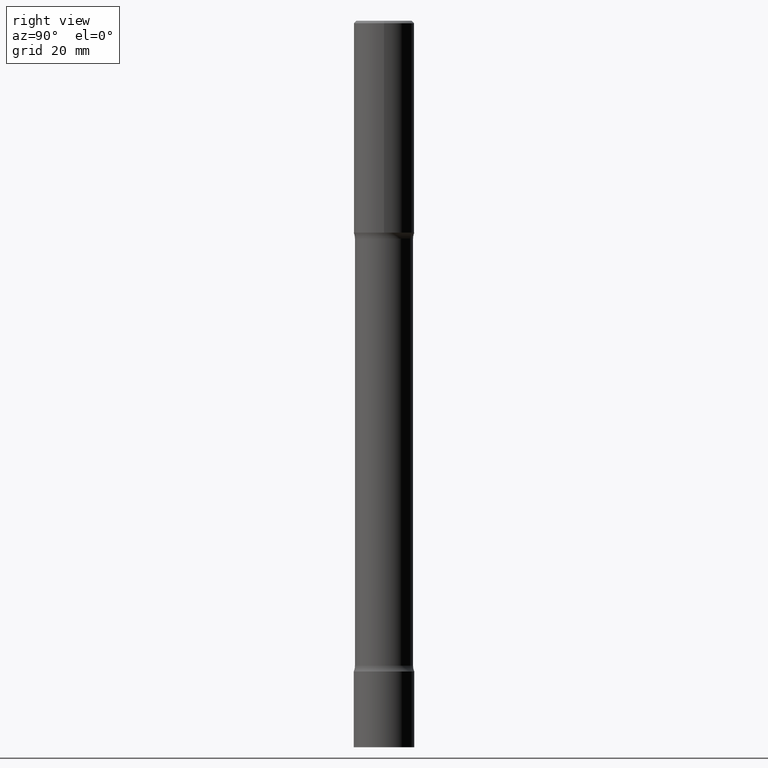
[diagram: clean part render]
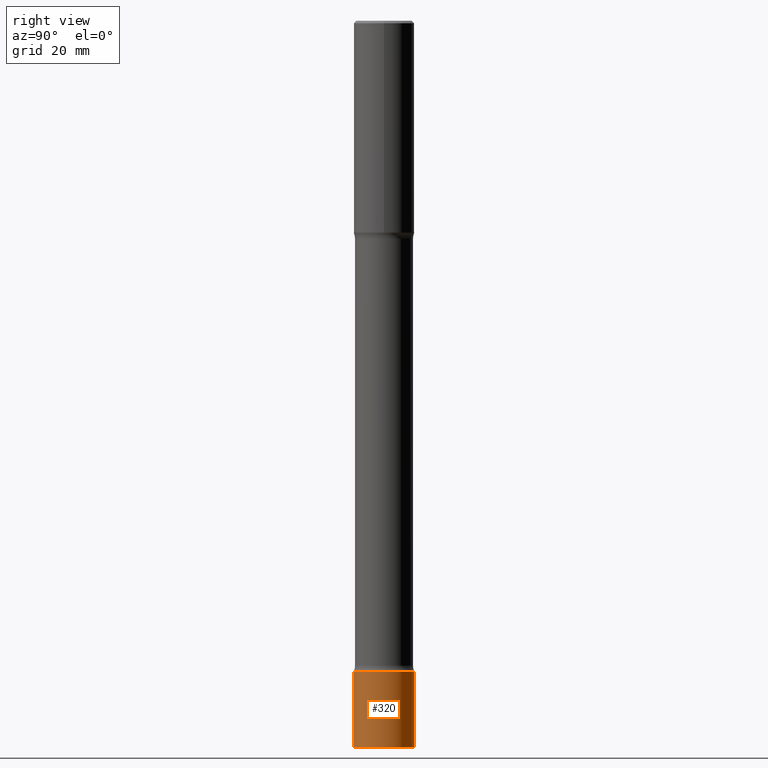
[diagram: same view with one face highlighted and labeled with its STEP entity id]
A machine part, right view. The second image highlights one B-rep face of the part: STEP entity #320.
In plain terms, the highlighted cylindrical surface (edge-blend (fillet) strip) has radius 6.35 mm, axis along (-0, 0, 1).
Its self-contained STEP definition (entity closure, byte-faithful):
#2 = EDGE_CURVE ( 'NONE', #488, #205, #156, .T. ) ;
#31 = DIRECTION ( 'NONE',  ( -2.445167468974182699E-29, 3.491912870880280667E-15, 1.000000000000000000 ) ) ;
#32 = DIRECTION ( 'NONE',  ( -2.445167468974182699E-29, 3.491912870880280272E-15, 1.000000000000000000 ) ) ;
#34 = VECTOR ( 'NONE', #32, 39.37007874015748143 ) ;
#50 = CARTESIAN_POINT ( 'NONE',  ( 1.776356839400388910E-15, 0.2499999999999789613, -6.000000000000001776 ) ) ;
#55 = CARTESIAN_POINT ( 'NONE',  ( 1.776356839400396798E-15, 0.2499999999999811262, -5.375000000000002665 ) ) ;
#59 = EDGE_LOOP ( 'NONE', ( #477, #236, #95, #502 ) ) ;
#65 = CARTESIAN_POINT ( 'NONE',  ( 0.000000000000000000, 0.000000000000000000, 0.000000000000000000 ) ) ;
#95 = ORIENTED_EDGE ( 'NONE', *, *, #2, .F. ) ;
#102 = EDGE_CURVE ( 'NONE', #408, #173, #425, .T. ) ;
#118 = LINE ( 'NONE', #167, #184 ) ;
#135 = CARTESIAN_POINT ( 'NONE',  ( -1.745740669421433952E-15, -0.2500000000000186517, -5.375000000000000888 ) ) ;
#140 = CARTESIAN_POINT ( 'NONE',  ( -1.745740669421419161E-15, -0.2500000000000208722, -5.999999999999999112 ) ) ;
#154 = CARTESIAN_POINT ( 'NONE',  ( 1.467100481384509675E-28, -2.095147722528168321E-14, -6.000000000000000888 ) ) ;
#156 = CIRCLE ( 'NONE', #444, 0.2499999999999998612 ) ;
#167 = CARTESIAN_POINT ( 'NONE',  ( -1.745740669421565692E-15, -0.2499999999999998890, 8.729782177200697723E-16 ) ) ;
#173 = VERTEX_POINT ( 'NONE', #50 ) ;
#174 = CARTESIAN_POINT ( 'NONE',  ( 1.776356839400249479E-15, 0.2499999999999998890, -8.729782177200697723E-16 ) ) ;
#178 = FACE_OUTER_BOUND ( 'NONE', #59, .T. ) ;
#184 = VECTOR ( 'NONE', #200, 39.37007874015748143 ) ;
#200 = DIRECTION ( 'NONE',  ( -2.445167468974182699E-29, 3.491912870880280272E-15, 1.000000000000000000 ) ) ;
#205 = VERTEX_POINT ( 'NONE', #55 ) ;
#206 = EDGE_CURVE ( 'NONE', #408, #488, #118, .T. ) ;
#209 = AXIS2_PLACEMENT_3D ( 'NONE', #65, #491, #245 ) ;
#216 = DIRECTION ( 'NONE',  ( -6.982962677686265922E-15, -1.000000000000000000, 4.370956789862822727E-15 ) ) ;
#236 = ORIENTED_EDGE ( 'NONE', *, *, #392, .T. ) ;
#245 = DIRECTION ( 'NONE',  ( -6.982962677686265922E-15, -1.000000000000000000, 3.491912870880280667E-15 ) ) ;
#261 = DIRECTION ( 'NONE',  ( -2.445167468974182699E-29, 3.491912870880280667E-15, 1.000000000000000000 ) ) ;
#286 = LINE ( 'NONE', #174, #34 ) ;
#320 = ADVANCED_FACE ( 'NONE', ( #178 ), #495, .T. ) ;
#392 = EDGE_CURVE ( 'NONE', #173, #205, #286, .T. ) ;
#408 = VERTEX_POINT ( 'NONE', #140 ) ;
#414 = AXIS2_PLACEMENT_3D ( 'NONE', #154, #261, #216 ) ;
#425 = CIRCLE ( 'NONE', #414, 0.2499999999999999167 ) ;
#444 = AXIS2_PLACEMENT_3D ( 'NONE', #457, #31, #493 ) ;
#457 = CARTESIAN_POINT ( 'NONE',  ( 1.314277514573623709E-28, -1.876903168098151268E-14, -5.375000000000001776 ) ) ;
#477 = ORIENTED_EDGE ( 'NONE', *, *, #102, .T. ) ;
#488 = VERTEX_POINT ( 'NONE', #135 ) ;
#491 = DIRECTION ( 'NONE',  ( -2.445167468974182699E-29, 3.491912870880280667E-15, 1.000000000000000000 ) ) ;
#493 = DIRECTION ( 'NONE',  ( -6.982962677686265922E-15, -1.000000000000000000, 4.370956789862823516E-15 ) ) ;
#495 = CYLINDRICAL_SURFACE ( 'NONE', #209, 0.2499999999999998890 ) ;
#502 = ORIENTED_EDGE ( 'NONE', *, *, #206, .F. ) ;